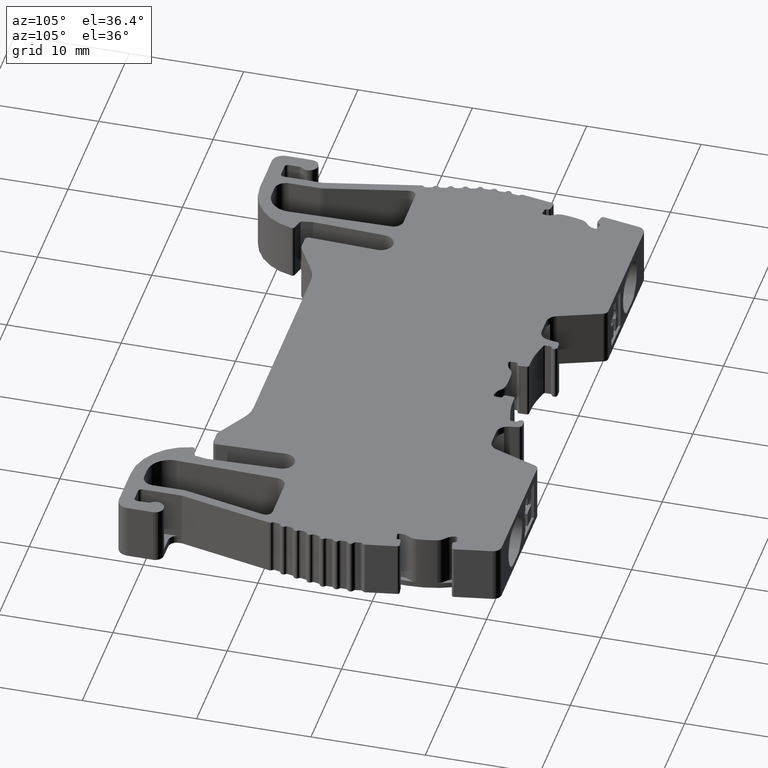
[diagram: clean part render]
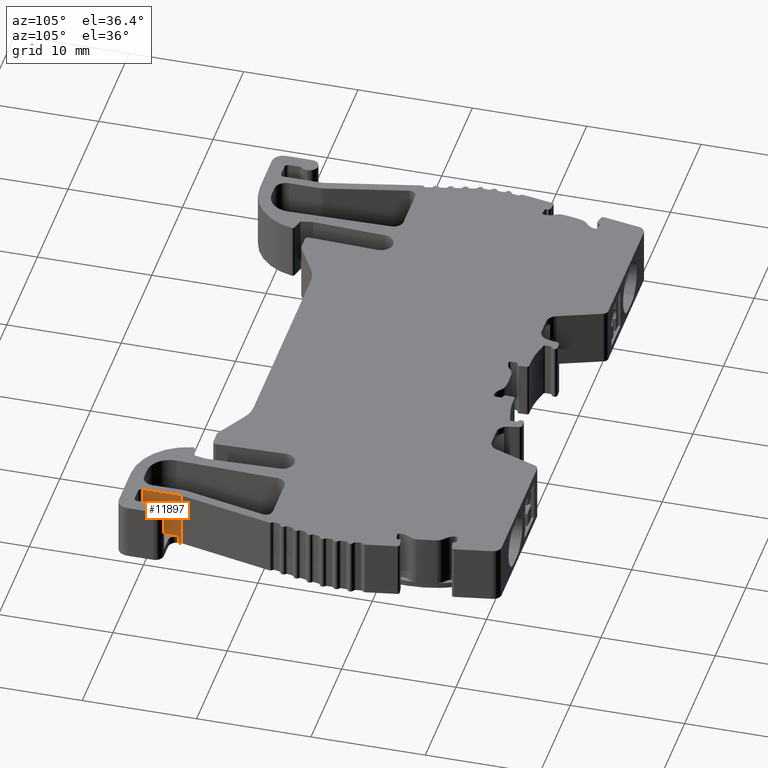
[diagram: same view with one face highlighted and labeled with its STEP entity id]
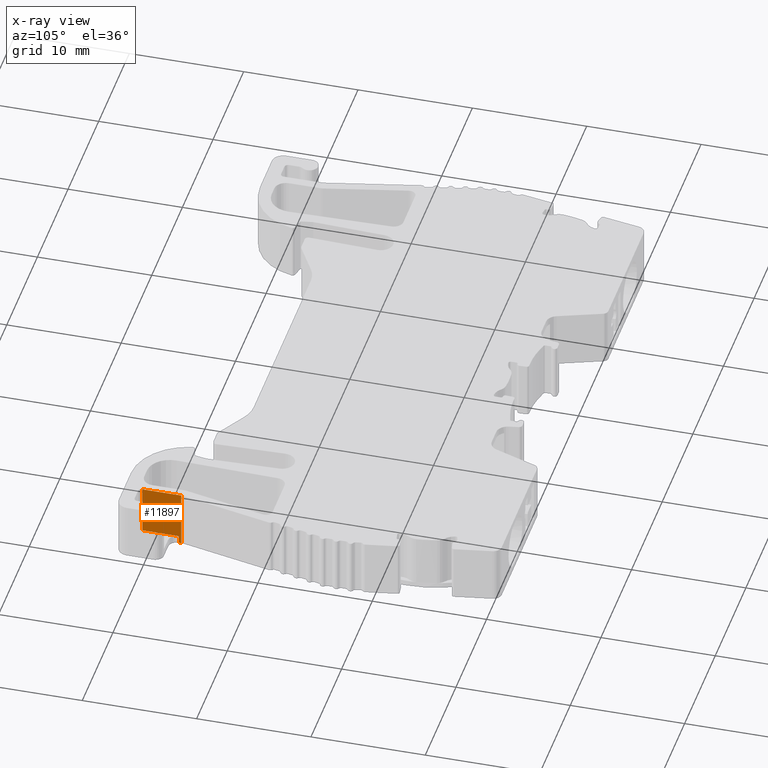
[diagram: x-ray of the same camera — body ghosted, the highlighted face saturated]
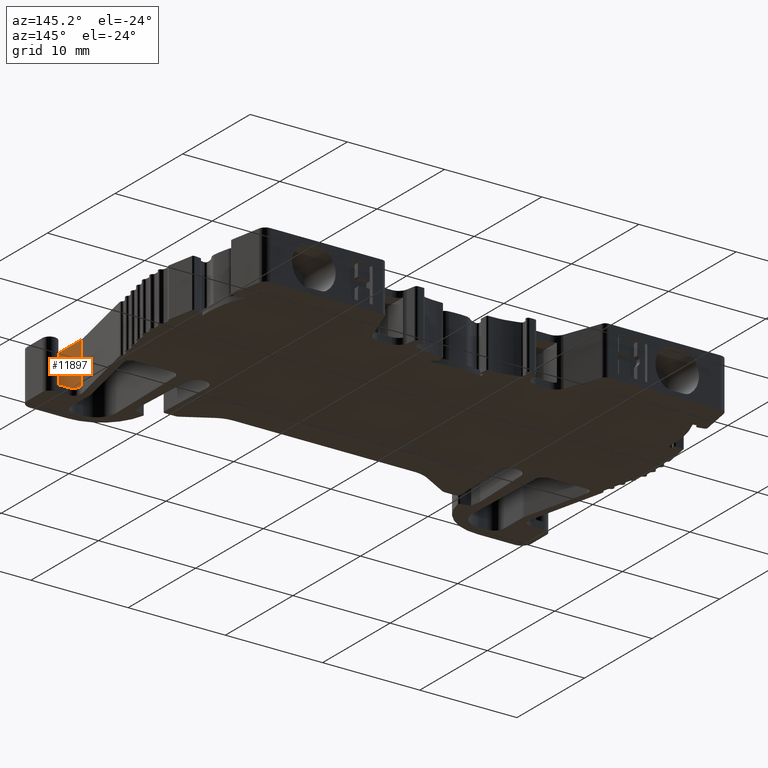
[diagram: same view with one face highlighted and labeled with its STEP entity id]
A machine part, auxiliary view. The second image highlights one B-rep face of the part: STEP entity #11897.
The next image is the same camera in x-ray: the body ghosted, the highlighted face saturated — about 0% of this face is hidden behind the body in this view.
A second angle (auxiliary view) of the same face is appended — the face is thin or edge-on in the first view.
In plain terms, the highlighted planar face has unit normal (1, 0, 0).
Its self-contained STEP definition (entity closure, byte-faithful):
#548 = EDGE_LOOP ( 'NONE', ( #9789, #9832, #9782, #9825, #9805, #9804 ) ) ;
#1918 = CARTESIAN_POINT ( 'NONE',  ( 1957.419958858480000, 492.6087383786959900, -50.50000000000000000 ) ) ;
#1924 = LINE ( 'NONE', #1918, #10483 ) ;
#1937 = DIRECTION ( 'NONE',  ( 0.0000000000000000000, 0.0000000000000000000, 1.000000000000000000 ) ) ;
#1963 = CARTESIAN_POINT ( 'NONE',  ( 1957.419958858480000, 492.4134972845349700, -7.327378647896789900 ) ) ;
#1968 = LINE ( 'NONE', #1963, #10499 ) ;
#1979 = DIRECTION ( 'NONE',  ( 0.0000000000000000000, 0.0000000000000000000, 1.000000000000000000 ) ) ;
#2035 = LINE ( 'NONE', #2065, #10534 ) ;
#2054 = DIRECTION ( 'NONE',  ( 0.0000000000000000000, 1.000000000000000000, 0.0000000000000000000 ) ) ;
#2057 = LINE ( 'NONE', #2059, #10434 ) ;
#2059 = CARTESIAN_POINT ( 'NONE',  ( 1957.419958858480000, 489.2133873903899800, 2.500000000000000000 ) ) ;
#2060 = CARTESIAN_POINT ( 'NONE',  ( 1957.419958858477900, 489.2133873903899800, -50.50000000000000000 ) ) ;
#2065 = CARTESIAN_POINT ( 'NONE',  ( 1957.419958858480000, 492.6087383786959900, -2.500000000000002200 ) ) ;
#2067 = DIRECTION ( 'NONE',  ( 0.0000000000000000000, 0.0000000000000000000, 1.000000000000000000 ) ) ;
#2073 = LINE ( 'NONE', #2060, #10529 ) ;
#2083 = DIRECTION ( 'NONE',  ( -5.885699155133039000E-013, -1.000000000000000000, 0.0000000000000000000 ) ) ;
#2104 = CARTESIAN_POINT ( 'NONE',  ( 1957.419958858445200, 1.249939302043710000E-010, -1.800000000000000000 ) ) ;
#2130 = LINE ( 'NONE', #2104, #12494 ) ;
#2180 = DIRECTION ( 'NONE',  ( 6.539665727925280400E-014, 1.000000000000000000, 0.0000000000000000000 ) ) ;
#5654 = PLANE ( 'NONE',  #6251 ) ;
#5664 = CARTESIAN_POINT ( 'NONE',  ( 1957.419958858480000, 489.2133873903899800, -50.50000000000000000 ) ) ;
#5665 = DIRECTION ( 'NONE',  ( 0.0000000000000000000, 0.0000000000000000000, -1.000000000000000000 ) ) ;
#5678 = DIRECTION ( 'NONE',  ( 1.000000000000000000, 0.0000000000000000000, 0.0000000000000000000 ) ) ;
#5681 = FACE_OUTER_BOUND ( 'NONE', #548, .T. ) ;
#6251 = AXIS2_PLACEMENT_3D ( 'NONE', #5664, #5678, #5665 ) ;
#6543 = CARTESIAN_POINT ( 'NONE',  ( 1957.419958858480000, 492.6087383786959900, -2.500000000000002200 ) ) ;
#6545 = CARTESIAN_POINT ( 'NONE',  ( 1957.419958858480000, 492.4134972845349700, -1.800000000000000000 ) ) ;
#6577 = CARTESIAN_POINT ( 'NONE',  ( 1957.419958858480000, 489.2133873903899800, -1.800000000000000000 ) ) ;
#6589 = CARTESIAN_POINT ( 'NONE',  ( 1957.419958858477900, 489.2133873903899800, 2.500000000000000000 ) ) ;
#6591 = CARTESIAN_POINT ( 'NONE',  ( 1957.419958858480000, 492.6087383786959900, 2.500000000000000000 ) ) ;
#6809 = CARTESIAN_POINT ( 'NONE',  ( 1957.419958858479700, 492.4134972845354200, -2.499999999999999600 ) ) ;
#8925 = EDGE_CURVE ( 'NONE', #10179, #10164, #1924, .T. ) ;
#8933 = EDGE_CURVE ( 'NONE', #10730, #10192, #1968, .T. ) ;
#8958 = EDGE_CURVE ( 'NONE', #10179, #10730, #2035, .T. ) ;
#8964 = EDGE_CURVE ( 'NONE', #10202, #10187, #2073, .T. ) ;
#8971 = EDGE_CURVE ( 'NONE', #10187, #10164, #2057, .T. ) ;
#8989 = EDGE_CURVE ( 'NONE', #10202, #10192, #2130, .T. ) ;
#9782 = ORIENTED_EDGE ( 'NONE', *, *, #8971, .F. ) ;
#9789 = ORIENTED_EDGE ( 'NONE', *, *, #8958, .F. ) ;
#9804 = ORIENTED_EDGE ( 'NONE', *, *, #8933, .F. ) ;
#9805 = ORIENTED_EDGE ( 'NONE', *, *, #8989, .T. ) ;
#9825 = ORIENTED_EDGE ( 'NONE', *, *, #8964, .F. ) ;
#9832 = ORIENTED_EDGE ( 'NONE', *, *, #8925, .T. ) ;
#10164 = VERTEX_POINT ( 'NONE', #6591 ) ;
#10179 = VERTEX_POINT ( 'NONE', #6543 ) ;
#10187 = VERTEX_POINT ( 'NONE', #6589 ) ;
#10192 = VERTEX_POINT ( 'NONE', #6545 ) ;
#10202 = VERTEX_POINT ( 'NONE', #6577 ) ;
#10434 = VECTOR ( 'NONE', #2054, 1000.000000000000000 ) ;
#10483 = VECTOR ( 'NONE', #1937, 1000.000000000000000 ) ;
#10499 = VECTOR ( 'NONE', #1979, 1000.000000000000000 ) ;
#10529 = VECTOR ( 'NONE', #2067, 1000.000000000000000 ) ;
#10534 = VECTOR ( 'NONE', #2083, 1000.000000000000000 ) ;
#10730 = VERTEX_POINT ( 'NONE', #6809 ) ;
#11897 = ADVANCED_FACE ( 'NONE', ( #5681 ), #5654, .T. ) ;
#12494 = VECTOR ( 'NONE', #2180, 1000.000000000000000 ) ;